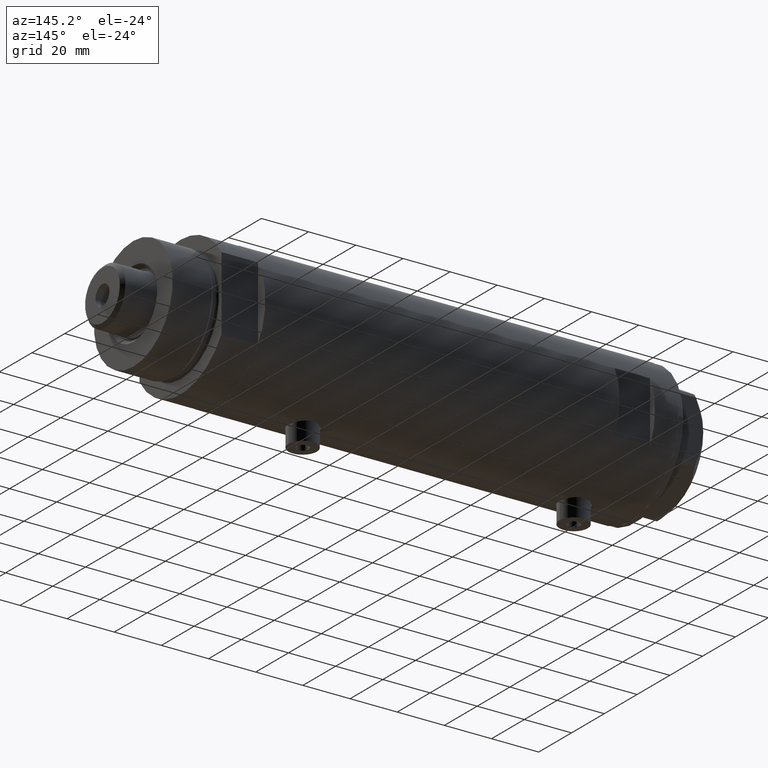
[diagram: clean part render]
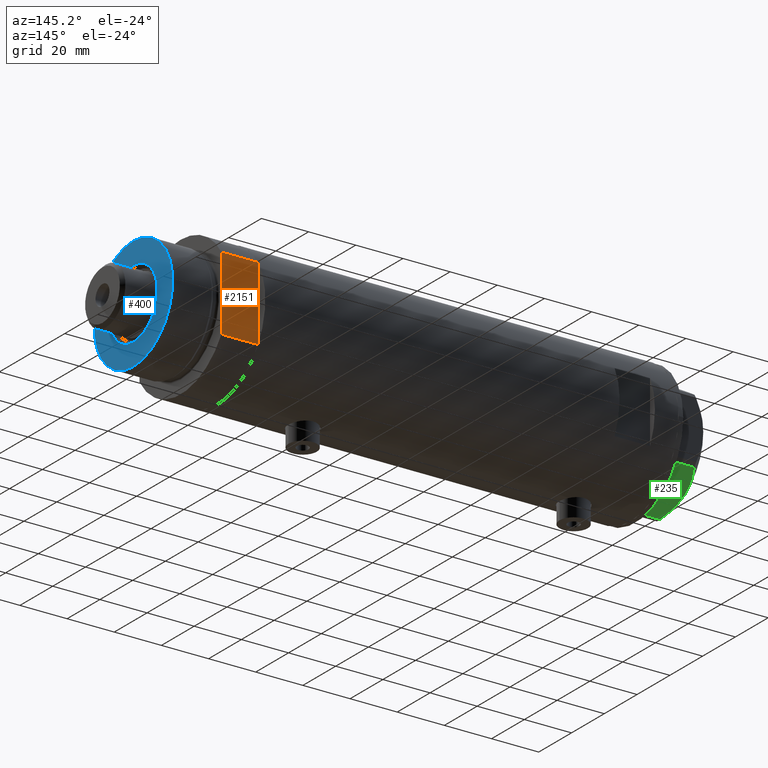
[diagram: same view with three faces highlighted in distinct colors, each labeled with its STEP entity id]
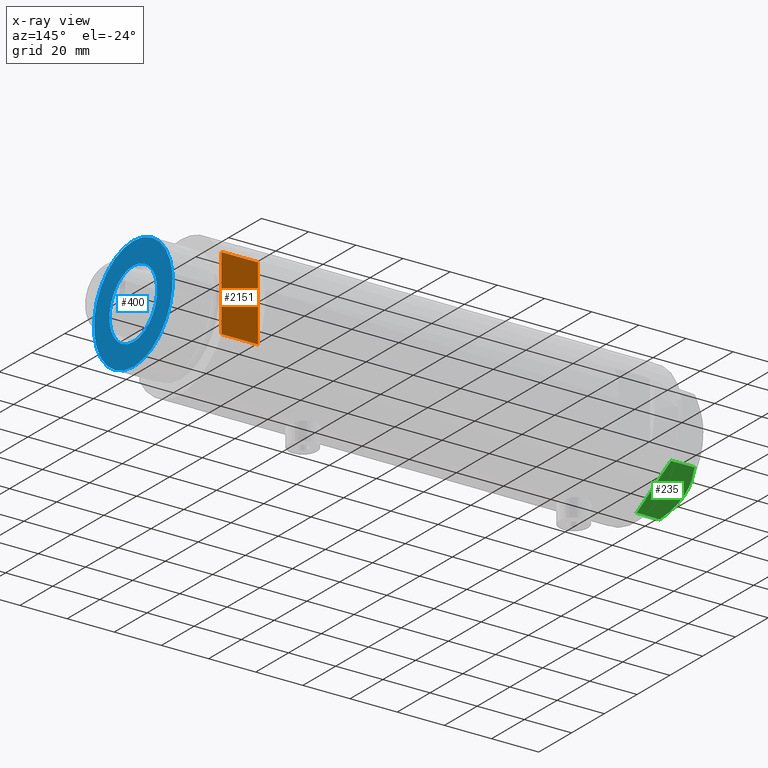
[diagram: x-ray of the same camera — body ghosted, the three highlighted faces saturated]
A machine part, auxiliary view with three faces highlighted in distinct colors.
The next image is the same camera in x-ray (body ghosted, the three faces saturated) — at least one of them is partly hidden behind the body in this view.
Their STEP definitions:

[orange] entity #2151 — the highlighted planar face has unit normal (0, -1, -0).
#20 = EDGE_CURVE ( 'NONE', #2427, #2880, #530, .T. ) ;
#23 = LINE ( 'NONE', #2620, #3143 ) ;
#141 = VECTOR ( 'NONE', #739, 1000.000000000000000 ) ;
#266 = DIRECTION ( 'NONE',  ( 1.000000000000000000, 0.000000000000000000, 0.000000000000000000 ) ) ;
#278 = CARTESIAN_POINT ( 'NONE',  ( 15.66045976336583045, 25.00000000000000000, 15.50000000000000000 ) ) ;
#315 = FACE_OUTER_BOUND ( 'NONE', #748, .T. ) ;
#351 = DIRECTION ( 'NONE',  ( 0.000000000000000000, -0.000000000000000000, -1.000000000000000000 ) ) ;
#415 = VERTEX_POINT ( 'NONE', #1529 ) ;
#430 = VERTEX_POINT ( 'NONE', #2643 ) ;
#530 = LINE ( 'NONE', #554, #2905 ) ;
#536 = EDGE_CURVE ( 'NONE', #415, #430, #1773, .T. ) ;
#554 = CARTESIAN_POINT ( 'NONE',  ( -15.66045976336583401, 25.00000000000000000, 0.000000000000000000 ) ) ;
#634 = CARTESIAN_POINT ( 'NONE',  ( -15.66045976336583401, 25.00000000000000000, 15.50000000000000000 ) ) ;
#687 = ORIENTED_EDGE ( 'NONE', *, *, #2364, .F. ) ;
#739 = DIRECTION ( 'NONE',  ( 1.000000000000000000, 0.000000000000000000, 0.000000000000000000 ) ) ;
#748 = EDGE_LOOP ( 'NONE', ( #4023, #1963, #4192, #2956, #687, #4335 ) ) ;
#838 = DIRECTION ( 'NONE',  ( -0.000000000000000000, -0.000000000000000000, 1.000000000000000000 ) ) ;
#997 = CARTESIAN_POINT ( 'NONE',  ( -15.66045976336583401, 25.00000000000000000, 0.000000000000000000 ) ) ;
#1222 = VERTEX_POINT ( 'NONE', #2463 ) ;
#1265 = VERTEX_POINT ( 'NONE', #278 ) ;
#1326 = LINE ( 'NONE', #1692, #3544 ) ;
#1402 = LINE ( 'NONE', #3952, #3783 ) ;
#1529 = CARTESIAN_POINT ( 'NONE',  ( 7.141428428542853091, 25.00000000000000000, 0.000000000000000000 ) ) ;
#1692 = CARTESIAN_POINT ( 'NONE',  ( -15.66045976336583401, 25.00000000000000000, 0.000000000000000000 ) ) ;
#1773 = LINE ( 'NONE', #997, #3924 ) ;
#1795 = EDGE_CURVE ( 'NONE', #430, #1265, #23, .T. ) ;
#1963 = ORIENTED_EDGE ( 'NONE', *, *, #1795, .F. ) ;
#2027 = CARTESIAN_POINT ( 'NONE',  ( -15.66045976336583401, 25.00000000000000000, 0.000000000000000000 ) ) ;
#2149 = CARTESIAN_POINT ( 'NONE',  ( -15.66045976336583401, 25.00000000000000000, 0.000000000000000000 ) ) ;
#2151 = ADVANCED_FACE ( 'NONE', ( #315 ), #2492, .F. ) ;
#2181 = CARTESIAN_POINT ( 'NONE',  ( -15.66045976336583045, 25.00000000000000000, 15.50000000000000000 ) ) ;
#2244 = LINE ( 'NONE', #634, #141 ) ;
#2287 = AXIS2_PLACEMENT_3D ( 'NONE', #2149, #3677, #351 ) ;
#2364 = EDGE_CURVE ( 'NONE', #2427, #1222, #1326, .T. ) ;
#2427 = VERTEX_POINT ( 'NONE', #2027 ) ;
#2463 = CARTESIAN_POINT ( 'NONE',  ( -7.141428428542853091, 25.00000000000000000, 0.000000000000000000 ) ) ;
#2492 = PLANE ( 'NONE',  #2287 ) ;
#2620 = CARTESIAN_POINT ( 'NONE',  ( 15.66045976336583401, 25.00000000000000000, 0.000000000000000000 ) ) ;
#2643 = CARTESIAN_POINT ( 'NONE',  ( 15.66045976336582690, 25.00000000000000000, 0.000000000000000000 ) ) ;
#2880 = VERTEX_POINT ( 'NONE', #2181 ) ;
#2905 = VECTOR ( 'NONE', #838, 1000.000000000000000 ) ;
#2956 = ORIENTED_EDGE ( 'NONE', *, *, #4724, .F. ) ;
#3008 = EDGE_CURVE ( 'NONE', #2880, #1265, #2244, .T. ) ;
#3143 = VECTOR ( 'NONE', #4451, 1000.000000000000000 ) ;
#3544 = VECTOR ( 'NONE', #4565, 1000.000000000000000 ) ;
#3677 = DIRECTION ( 'NONE',  ( 0.000000000000000000, -1.000000000000000000, 0.000000000000000000 ) ) ;
#3783 = VECTOR ( 'NONE', #266, 1000.000000000000000 ) ;
#3924 = VECTOR ( 'NONE', #4765, 1000.000000000000000 ) ;
#3952 = CARTESIAN_POINT ( 'NONE',  ( -15.66045976336583401, 25.00000000000000000, 0.000000000000000000 ) ) ;
#4023 = ORIENTED_EDGE ( 'NONE', *, *, #3008, .T. ) ;
#4192 = ORIENTED_EDGE ( 'NONE', *, *, #536, .F. ) ;
#4335 = ORIENTED_EDGE ( 'NONE', *, *, #20, .T. ) ;
#4451 = DIRECTION ( 'NONE',  ( -0.000000000000000000, -0.000000000000000000, 1.000000000000000000 ) ) ;
#4565 = DIRECTION ( 'NONE',  ( 1.000000000000000000, 0.000000000000000000, 0.000000000000000000 ) ) ;
#4724 = EDGE_CURVE ( 'NONE', #1222, #415, #1402, .T. ) ;
#4765 = DIRECTION ( 'NONE',  ( 1.000000000000000000, 0.000000000000000000, 0.000000000000000000 ) ) ;

[blue] entity #400 — the highlighted planar face has unit normal (1, 0, -0).
#52 = CARTESIAN_POINT ( 'NONE',  ( 0.000000000000000000, 0.000000000000000000, 35.50000000000000711 ) ) ;
#108 = DIRECTION ( 'NONE',  ( 1.000000000000000000, 0.000000000000000000, 0.000000000000000000 ) ) ;
#267 = ORIENTED_EDGE ( 'NONE', *, *, #2241, .T. ) ;
#273 = DIRECTION ( 'NONE',  ( 1.000000000000000000, 0.000000000000000000, 0.000000000000000000 ) ) ;
#325 = CARTESIAN_POINT ( 'NONE',  ( 0.000000000000000000, 0.000000000000000000, 35.50000000000000711 ) ) ;
#330 = DIRECTION ( 'NONE',  ( -0.000000000000000000, -0.000000000000000000, -1.000000000000000000 ) ) ;
#400 = ADVANCED_FACE ( 'NONE', ( #487, #3787 ), #2622, .T. ) ;
#457 = CARTESIAN_POINT ( 'NONE',  ( -24.00000000000000355, 0.000000000000000000, 35.50000000000000711 ) ) ;
#487 = FACE_BOUND ( 'NONE', #688, .T. ) ;
#606 = AXIS2_PLACEMENT_3D ( 'NONE', #325, #4703, #273 ) ;
#688 = EDGE_LOOP ( 'NONE', ( #1169, #267 ) ) ;
#714 = DIRECTION ( 'NONE',  ( 1.000000000000000000, 0.000000000000000000, 0.000000000000000000 ) ) ;
#741 = VERTEX_POINT ( 'NONE', #457 ) ;
#749 = CIRCLE ( 'NONE', #606, 24.00000000000000355 ) ;
#756 = CIRCLE ( 'NONE', #3315, 14.54999999999999361 ) ;
#933 = CARTESIAN_POINT ( 'NONE',  ( 0.000000000000000000, 0.000000000000000000, 35.50000000000000711 ) ) ;
#1069 = AXIS2_PLACEMENT_3D ( 'NONE', #933, #2704, #108 ) ;
#1127 = CARTESIAN_POINT ( 'NONE',  ( 24.00000000000000355, 2.939152317953648289E-15, 35.50000000000000711 ) ) ;
#1169 = ORIENTED_EDGE ( 'NONE', *, *, #3464, .T. ) ;
#1180 = DIRECTION ( 'NONE',  ( 1.000000000000000000, 0.000000000000000000, 0.000000000000000000 ) ) ;
#1191 = DIRECTION ( 'NONE',  ( 0.000000000000000000, 0.000000000000000000, 1.000000000000000000 ) ) ;
#1307 = CIRCLE ( 'NONE', #1069, 24.00000000000000355 ) ;
#1569 = CARTESIAN_POINT ( 'NONE',  ( 14.54999999999999361, 0.000000000000000000, 35.50000000000000711 ) ) ;
#1879 = EDGE_LOOP ( 'NONE', ( #4699, #1997 ) ) ;
#1900 = CIRCLE ( 'NONE', #4610, 14.54999999999999361 ) ;
#1997 = ORIENTED_EDGE ( 'NONE', *, *, #4134, .T. ) ;
#2031 = CARTESIAN_POINT ( 'NONE',  ( -14.54999999999999361, 1.781861092759398299E-15, 35.50000000000000711 ) ) ;
#2041 = VERTEX_POINT ( 'NONE', #1127 ) ;
#2241 = EDGE_CURVE ( 'NONE', #3809, #4790, #1900, .T. ) ;
#2299 = DIRECTION ( 'NONE',  ( 1.000000000000000000, 0.000000000000000000, -0.000000000000000000 ) ) ;
#2622 = PLANE ( 'NONE',  #2683 ) ;
#2683 = AXIS2_PLACEMENT_3D ( 'NONE', #52, #1191, #2299 ) ;
#2704 = DIRECTION ( 'NONE',  ( 0.000000000000000000, 0.000000000000000000, 1.000000000000000000 ) ) ;
#2870 = EDGE_CURVE ( 'NONE', #741, #2041, #749, .T. ) ;
#3018 = CARTESIAN_POINT ( 'NONE',  ( 0.000000000000000000, 0.000000000000000000, 35.50000000000000711 ) ) ;
#3287 = CARTESIAN_POINT ( 'NONE',  ( 0.000000000000000000, 0.000000000000000000, 35.50000000000000711 ) ) ;
#3315 = AXIS2_PLACEMENT_3D ( 'NONE', #3287, #330, #714 ) ;
#3464 = EDGE_CURVE ( 'NONE', #4790, #3809, #756, .T. ) ;
#3787 = FACE_OUTER_BOUND ( 'NONE', #1879, .T. ) ;
#3809 = VERTEX_POINT ( 'NONE', #2031 ) ;
#4134 = EDGE_CURVE ( 'NONE', #2041, #741, #1307, .T. ) ;
#4491 = DIRECTION ( 'NONE',  ( -0.000000000000000000, -0.000000000000000000, -1.000000000000000000 ) ) ;
#4610 = AXIS2_PLACEMENT_3D ( 'NONE', #3018, #4491, #1180 ) ;
#4699 = ORIENTED_EDGE ( 'NONE', *, *, #2870, .T. ) ;
#4703 = DIRECTION ( 'NONE',  ( 0.000000000000000000, 0.000000000000000000, 1.000000000000000000 ) ) ;
#4790 = VERTEX_POINT ( 'NONE', #1569 ) ;

[green] entity #235 — the highlighted planar face has unit normal (0, -0.5, 0.866).
#8 = CARTESIAN_POINT ( 'NONE',  ( 4.357207709416042185, 24.04247733877631887, 11.57055225522968378 ) ) ;
#58 = VERTEX_POINT ( 'NONE', #4587 ) ;
#80 = EDGE_CURVE ( 'NONE', #1456, #58, #1273, .T. ) ;
#207 = AXIS2_PLACEMENT_3D ( 'NONE', #239, #626, #4326 ) ;
#235 = ADVANCED_FACE ( 'NONE', ( #2959 ), #2098, .F. ) ;
#239 = CARTESIAN_POINT ( 'NONE',  ( 22.99999999999981171, 13.27905619136164184, 13.00000000000000000 ) ) ;
#295 = LINE ( 'NONE', #657, #1133 ) ;
#454 = VERTEX_POINT ( 'NONE', #2087 ) ;
#481 = ORIENTED_EDGE ( 'NONE', *, *, #4026, .F. ) ;
#615 = EDGE_CURVE ( 'NONE', #1456, #1020, #295, .T. ) ;
#626 = DIRECTION ( 'NONE',  ( -0.4999999999999948930, -0.8660254037844415942, 0.000000000000000000 ) ) ;
#657 = CARTESIAN_POINT ( 'NONE',  ( 22.03005154776124996, 13.83905619136162635, 13.00000000000000000 ) ) ;
#773 = DIRECTION ( 'NONE',  ( -0.8660254037844415942, 0.4999999999999949485, 0.000000000000000000 ) ) ;
#783 = CARTESIAN_POINT ( 'NONE',  ( 0.9699484522385838359, 25.99811238272274139, 9.983800287807635954 ) ) ;
#841 = VECTOR ( 'NONE', #773, 999.9999999999998863 ) ;
#938 = CARTESIAN_POINT ( 'NONE',  ( 13.80210138309696788, 18.58946543380931260, 12.85271263895571181 ) ) ;
#1020 = VERTEX_POINT ( 'NONE', #2778 ) ;
#1041 = ORIENTED_EDGE ( 'NONE', *, *, #615, .T. ) ;
#1046 = ORIENTED_EDGE ( 'NONE', *, *, #4535, .T. ) ;
#1133 = VECTOR ( 'NONE', #2881, 1000.000000000000000 ) ;
#1152 = CARTESIAN_POINT ( 'NONE',  ( 5.229981517798068857, 23.53858114556529912, 11.89212886775839451 ) ) ;
#1228 = CARTESIAN_POINT ( 'NONE',  ( 22.03005154776139207, 13.83905619136154463, 9.983800287807527596 ) ) ;
#1273 = B_SPLINE_CURVE_WITH_KNOTS ( 'NONE', 3,
 ( #1228, #4614, #2313, #4257, #2780, #938, #3041, #1566, #4187, #4514 ),
 .UNSPECIFIED., .F., .F.,
 ( 4, 2, 2, 2, 4 ),
 ( 0.001228959670438484414, 0.007497079744270713011, 0.01063113978118682308, 0.01219816979964488159, 0.01376519981810293836 ),
 .UNSPECIFIED. ) ;
#1436 = CARTESIAN_POINT ( 'NONE',  ( 5.671686373602804920, 23.28356272816407113, 12.04068176582928018 ) ) ;
#1456 = VERTEX_POINT ( 'NONE', #3838 ) ;
#1566 = CARTESIAN_POINT ( 'NONE',  ( 12.41906678023027055, 19.38796083407295612, 12.98168640760940562 ) ) ;
#1893 = CARTESIAN_POINT ( 'NONE',  ( 2.640413878806743053, 25.03366871902166935, 10.84420102443836598 ) ) ;
#1984 = VERTEX_POINT ( 'NONE', #4056 ) ;
#2087 = CARTESIAN_POINT ( 'NONE',  ( 0.9699484522385886098, 25.99811238272273783, 0.000000000000000000 ) ) ;
#2098 = PLANE ( 'NONE',  #207 ) ;
#2258 = CARTESIAN_POINT ( 'NONE',  ( 3.925137811030053214, 24.29193301091819279, 11.39727285399137813 ) ) ;
#2278 = DIRECTION ( 'NONE',  ( 0.000000000000000000, 0.000000000000000000, 1.000000000000000000 ) ) ;
#2313 = CARTESIAN_POINT ( 'NONE',  ( 18.67981377008996802, 15.77331687414936567, 11.62937486882604965 ) ) ;
#2510 = B_SPLINE_CURVE_WITH_KNOTS ( 'NONE', 3,
 ( #2629, #4106, #4054, #1436, #1152, #8, #2258, #1893, #4034, #783 ),
 .UNSPECIFIED., .F., .F.,
 ( 4, 2, 2, 2, 4 ),
 ( 0.01376519981810293836, 0.01998941321701560442, 0.02154546656674377267, 0.02310151991647194092, 0.02621362661592828089 ),
 .UNSPECIFIED. ) ;
#2616 = LINE ( 'NONE', #4094, #841 ) ;
#2629 = CARTESIAN_POINT ( 'NONE',  ( 11.49999999999990408, 19.91858428704219364, 13.00000000000000000 ) ) ;
#2671 = CARTESIAN_POINT ( 'NONE',  ( 0.9699484522385886098, 25.99811238272273783, 13.00000000000000000 ) ) ;
#2778 = CARTESIAN_POINT ( 'NONE',  ( 22.03005154776124996, 13.83905619136162635, 0.000000000000000000 ) ) ;
#2780 = CARTESIAN_POINT ( 'NONE',  ( 15.16323225988329604, 17.80361615569442790, 12.63731396715686728 ) ) ;
#2881 = DIRECTION ( 'NONE',  ( 0.000000000000000000, 0.000000000000000000, -1.000000000000000000 ) ) ;
#2959 = FACE_OUTER_BOUND ( 'NONE', #4737, .T. ) ;
#3041 = CARTESIAN_POINT ( 'NONE',  ( 13.34348161667004362, 18.85424967941157703, 12.90784227772834392 ) ) ;
#3638 = EDGE_CURVE ( 'NONE', #454, #1984, #4532, .T. ) ;
#3668 = ORIENTED_EDGE ( 'NONE', *, *, #80, .F. ) ;
#3838 = CARTESIAN_POINT ( 'NONE',  ( 22.03005154776139207, 13.83905619136154463, 9.983800287807527596 ) ) ;
#3875 = ORIENTED_EDGE ( 'NONE', *, *, #3638, .T. ) ;
#4026 = EDGE_CURVE ( 'NONE', #58, #1984, #2510, .T. ) ;
#4034 = CARTESIAN_POINT ( 'NONE',  ( 1.799196345396830266, 25.51934588838290452, 10.43131750950938930 ) ) ;
#4054 = CARTESIAN_POINT ( 'NONE',  ( 7.884645426989624895, 22.00591022298558741, 12.70765172847692526 ) ) ;
#4056 = CARTESIAN_POINT ( 'NONE',  ( 0.9699484522385838359, 25.99811238272274139, 9.983800287807635954 ) ) ;
#4094 = CARTESIAN_POINT ( 'NONE',  ( 22.99999999999981171, 13.27905619136164184, 0.000000000000000000 ) ) ;
#4106 = CARTESIAN_POINT ( 'NONE',  ( 9.678244919010090541, 20.97037507344921892, 13.00000000000000888 ) ) ;
#4163 = VECTOR ( 'NONE', #2278, 1000.000000000000000 ) ;
#4187 = CARTESIAN_POINT ( 'NONE',  ( 11.95865151389051384, 19.65378171203322921, 13.00000000000000355 ) ) ;
#4257 = CARTESIAN_POINT ( 'NONE',  ( 16.05322244309624224, 17.28978008384030929, 12.42689993760370015 ) ) ;
#4326 = DIRECTION ( 'NONE',  ( 0.8660254037844415942, -0.4999999999999948930, 0.000000000000000000 ) ) ;
#4514 = CARTESIAN_POINT ( 'NONE',  ( 11.49999999999990408, 19.91858428704219364, 13.00000000000000000 ) ) ;
#4532 = LINE ( 'NONE', #2671, #4163 ) ;
#4535 = EDGE_CURVE ( 'NONE', #1020, #454, #2616, .T. ) ;
#4587 = CARTESIAN_POINT ( 'NONE',  ( 11.49999999999990408, 19.91858428704219364, 13.00000000000000000 ) ) ;
#4614 = CARTESIAN_POINT ( 'NONE',  ( 20.37350567916420374, 14.79546339452108228, 10.87778242614341728 ) ) ;
#4737 = EDGE_LOOP ( 'NONE', ( #3668, #1041, #1046, #3875, #481 ) ) ;